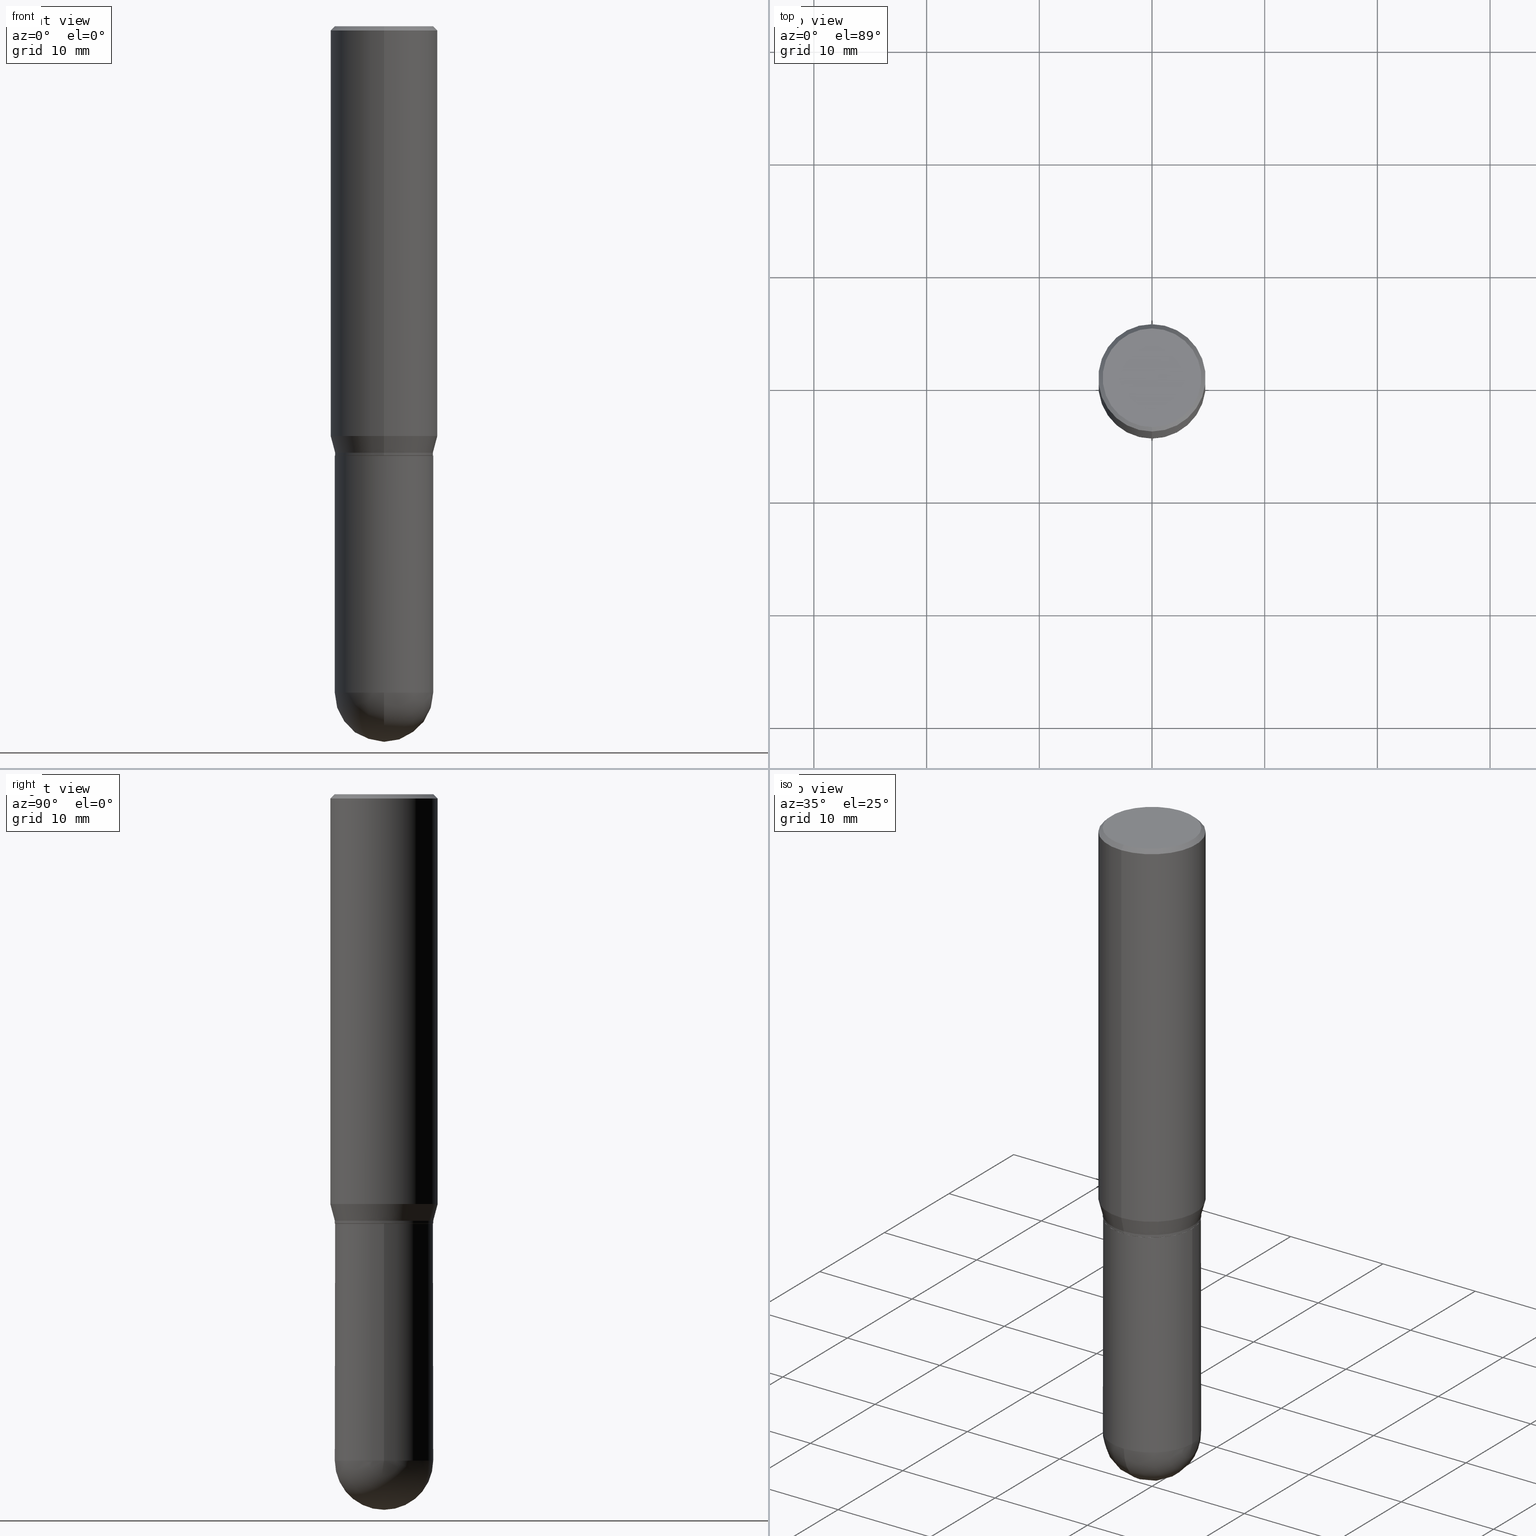
[diagram: canonical four-view strip — front | top / right | iso, engineering-drawing reading convention]
A machine part, canonical four-view strip (front | top / right | iso — engineering-drawing reading convention). The complete STEP part file that produces these views, byte-faithful:
ISO-10303-21;
HEADER;
FILE_DESCRIPTION (( 'STEP AP203' ),
    '1' );
FILE_NAME ('30344.STEP',
    '2024-03-08T15:22:31',
    ( '' ),
    ( '' ),
    'SwSTEP 2.0',
    'SolidWorks 2023',
    '' );
FILE_SCHEMA (( 'CONFIG_CONTROL_DESIGN' ));
ENDSEC;

DATA;
#1 = ORIENTED_EDGE ( 'NONE', *, *, #360, .F. ) ;
#2 = CARTESIAN_POINT ( 'NONE',  ( 0.000000000000000000, 0.000000000000000000, 0.000000000000000000 ) ) ;
#3 = VERTEX_POINT ( 'NONE', #417 ) ;
#4 = AXIS2_PLACEMENT_3D ( 'NONE', #105, #339, #143 ) ;
#5 = AXIS2_PLACEMENT_3D ( 'NONE', #58, #138, #167 ) ;
#6 = ORIENTED_EDGE ( 'NONE', *, *, #286, .F. ) ;
#7 = DIRECTION ( 'NONE',  ( 1.000000000000000000, 0.000000000000000000, 0.000000000000000000 ) ) ;
#8 = EDGE_LOOP ( 'NONE', ( #83, #259 ) ) ;
#9 = APPLICATION_PROTOCOL_DEFINITION ( 'international standard', 'config_control_design', 1994, #418 ) ;
#10 = ADVANCED_FACE ( 'NONE', ( #18 ), #490, .T. ) ;
#11 = ORIENTED_EDGE ( 'NONE', *, *, #49, .F. ) ;
#12 = CC_DESIGN_PERSON_AND_ORGANIZATION_ASSIGNMENT ( #237, #84, ( #427 ) ) ;
#13 = CARTESIAN_POINT ( 'NONE',  ( -2.199369276727651250E-46, 3.141047476091932851E-32, 8.994982205776030959E-18 ) ) ;
#14 = EDGE_LOOP ( 'NONE', ( #91, #315, #327, #50 ) ) ;
#15 = CONICAL_SURFACE ( 'NONE', #254, 0.1875000000000000278, 0.7853981633974485010 ) ;
#16 = FACE_OUTER_BOUND ( 'NONE', #197, .T. ) ;
#17 = CARTESIAN_POINT ( 'NONE',  ( 1.221422962771611214E-15, 0.1718999999999998862, -6.002747407254260600E-16 ) ) ;
#18 = FACE_OUTER_BOUND ( 'NONE', #209, .T. ) ;
#19 = DIRECTION ( 'NONE',  ( -2.445468806185136597E-29, 3.491481338843145583E-15, 1.000000000000000000 ) ) ;
#20 = CIRCLE ( 'NONE', #311, 0.1875000000000000278 ) ;
#21 = LOCAL_TIME ( 10, 22, 31.00000000000000000, #404 ) ;
#22 = CARTESIAN_POINT ( 'NONE',  ( 1.221422962771647501E-15, 0.1718999999999946959, -1.490000000000000879 ) ) ;
#23 = CARTESIAN_POINT ( 'NONE',  ( 3.668203209277704895E-29, -5.237222008264718177E-15, -1.500000000000000222 ) ) ;
#24 = DIRECTION ( 'NONE',  ( -6.982962677686265922E-15, -1.000000000000000000, 2.913971193241880372E-15 ) ) ;
#25 = ORIENTED_EDGE ( 'NONE', *, *, #415, .T. ) ;
#26 =( NAMED_UNIT ( * ) PLANE_ANGLE_UNIT ( ) SI_UNIT ( $, .RADIAN. ) );
#27 = FACE_OUTER_BOUND ( 'NONE', #8, .T. ) ;
#28 = CARTESIAN_POINT ( 'NONE',  ( -1.196879802955389158E-15, -0.1714000000000052149, -1.499999999999999556 ) ) ;
#29 = LINE ( 'NONE', #144, #78 ) ;
#30 = AXIS2_PLACEMENT_3D ( 'NONE', #230, #148, #68 ) ;
#31 = DIRECTION ( 'NONE',  ( -2.445468806185136597E-29, 3.491481338843145583E-15, 1.000000000000000000 ) ) ;
#32 = AXIS2_PLACEMENT_3D ( 'NONE', #72, #349, #63 ) ;
#33 = ADVANCED_FACE ( 'NONE', ( #487 ), #101, .T. ) ;
#34 = ADVANCED_FACE ( 'NONE', ( #489 ), #178, .T. ) ;
#35 = CARTESIAN_POINT ( 'NONE',  ( 3.500855129308181168E-29, -4.999775292141012103E-15, -1.431780007401925348 ) ) ;
#36 = FACE_OUTER_BOUND ( 'NONE', #199, .T. ) ;
#37 = EDGE_LOOP ( 'NONE', ( #441, #95, #45, #429 ) ) ;
#38 = DIRECTION ( 'NONE',  ( 6.982962677686265922E-15, 1.000000000000000000, -3.178415350394722463E-15 ) ) ;
#39 = APPROVAL_ROLE ( '' ) ;
#40 = FACE_OUTER_BOUND ( 'NONE', #131, .T. ) ;
#41 = ORGANIZATION ( 'UNSPECIFIED', 'UNSPECIFIED', '' ) ;
#42 = ORIENTED_EDGE ( 'NONE', *, *, #228, .T. ) ;
#43 = ORIENTED_EDGE ( 'NONE', *, *, #156, .T. ) ;
#44 = ORIENTED_EDGE ( 'NONE', *, *, #451, .F. ) ;
#45 = ORIENTED_EDGE ( 'NONE', *, *, #69, .F. ) ;
#46 = PERSON_AND_ORGANIZATION ( #324, #41 ) ;
#47 = VERTEX_POINT ( 'NONE', #294 ) ;
#48 = AXIS2_PLACEMENT_3D ( 'NONE', #334, #216, #492 ) ;
#49 = EDGE_CURVE ( 'NONE', #164, #469, #482, .T. ) ;
#50 = ORIENTED_EDGE ( 'NONE', *, *, #118, .F. ) ;
#51 = CARTESIAN_POINT ( 'NONE',  ( 3.667660301732476418E-29, -5.237999482769865382E-15, -1.500000000000000222 ) ) ;
#52 = ORIENTED_EDGE ( 'NONE', *, *, #435, .F. ) ;
#53 = CARTESIAN_POINT ( 'NONE',  ( 3.667660301732476418E-29, -5.237999482769865382E-15, -1.500000000000000222 ) ) ;
#54 = AXIS2_PLACEMENT_3D ( 'NONE', #464, #500, #465 ) ;
#55 = CIRCLE ( 'NONE', #476, 0.1713999999999999690 ) ;
#56 = DIRECTION ( 'NONE',  ( 2.438088387897960049E-29, -3.491481338843145188E-15, -1.000000000000000000 ) ) ;
#57 = DIRECTION ( 'NONE',  ( -2.445468806185136597E-29, 3.491481338843145583E-15, 1.000000000000000000 ) ) ;
#58 = CARTESIAN_POINT ( 'NONE',  ( 3.667660301732473984E-31, -5.237999482769862300E-17, -0.01499999999999999077 ) ) ;
#59 = CARTESIAN_POINT ( 'NONE',  ( 1.219646605932247841E-15, 0.1713999999999947510, -1.500000000000000666 ) ) ;
#60 = FACE_OUTER_BOUND ( 'NONE', #155, .T. ) ;
#61 = CARTESIAN_POINT ( 'NONE',  ( 3.667660301732476418E-29, -5.237999482769865382E-15, -1.500000000000000222 ) ) ;
#62 = AXIS2_PLACEMENT_3D ( 'NONE', #120, #151, #390 ) ;
#63 = DIRECTION ( 'NONE',  ( 6.982962677686265922E-15, 1.000000000000000000, -3.178415350394722463E-15 ) ) ;
#64 = FACE_OUTER_BOUND ( 'NONE', #354, .T. ) ;
#65 = DIRECTION ( 'NONE',  ( 2.445106867821650011E-29, -3.491999655179910386E-15, -1.000000000000000000 ) ) ;
#66 = CYLINDRICAL_SURFACE ( 'NONE', #270, 0.1875000000000000278 ) ;
#67 = CARTESIAN_POINT ( 'NONE',  ( 1.200371284294326039E-15, 0.1718999999999918094, -2.328100000000000946 ) ) ;
#68 = DIRECTION ( 'NONE',  ( -6.982962677686265922E-15, -1.000000000000000000, 3.178415350394723646E-15 ) ) ;
#69 = EDGE_CURVE ( 'NONE', #128, #132, #220, .T. ) ;
#70 = AXIS2_PLACEMENT_3D ( 'NONE', #445, #180, #247 ) ;
#71 = DIRECTION ( 'NONE',  ( -2.445106867821650572E-29, 3.491999655179909992E-15, 1.000000000000000000 ) ) ;
#72 = CARTESIAN_POINT ( 'NONE',  ( 5.678595619168622984E-29, -8.149569383438070914E-15, -2.328100000000000058 ) ) ;
#73 = CARTESIAN_POINT ( 'NONE',  ( 3.667660301732473984E-31, -5.237999482769862300E-17, -0.01499999999999999077 ) ) ;
#74 = CARTESIAN_POINT ( 'NONE',  ( -1.221422962771555008E-15, -0.1719000000000081296, -2.328099999999999614 ) ) ;
#75 = ORIENTED_EDGE ( 'NONE', *, *, #271, .T. ) ;
#76 = DATE_AND_TIME ( #477, #491 ) ;
#77 = CARTESIAN_POINT ( 'NONE',  ( 3.643209233054260103E-29, -5.203079486218066937E-15, -1.490000000000000213 ) ) ;
#78 = VECTOR ( 'NONE', #301, 39.37007874015748143 ) ;
#79 = CC_DESIGN_PERSON_AND_ORGANIZATION_ASSIGNMENT ( #46, #160, ( #282 ) ) ;
#81 = ORIENTED_EDGE ( 'NONE', *, *, #366, .F. ) ;
#80 = AXIS2_PLACEMENT_3D ( 'NONE', #35, #346, #502 ) ;
#82 = PERSON_AND_ORGANIZATION_ROLE ( 'creator' ) ;
#83 = ORIENTED_EDGE ( 'NONE', *, *, #286, .T. ) ;
#84 = PERSON_AND_ORGANIZATION_ROLE ( 'creator' ) ;
#85 = ORIENTED_EDGE ( 'NONE', *, *, #399, .T. ) ;
#86 = EDGE_CURVE ( 'NONE', #432, #162, #402, .T. ) ;
#87 = DIRECTION ( 'NONE',  ( 0.000000000000000000, 0.000000000000000000, 1.000000000000000000 ) ) ;
#88 = VERTEX_POINT ( 'NONE', #371 ) ;
#89 = AXIS2_PLACEMENT_3D ( 'NONE', #183, #71, #379 ) ;
#90 = CIRCLE ( 'NONE', #376, 0.1719000000000000250 ) ;
#91 = ORIENTED_EDGE ( 'NONE', *, *, #458, .F. ) ;
#92 = EDGE_CURVE ( 'NONE', #437, #264, #392, .T. ) ;
#93 = DIRECTION ( 'NONE',  ( -2.445106867821650572E-29, 3.491999655179909992E-15, 1.000000000000000000 ) ) ;
#94 = APPLICATION_CONTEXT ( 'configuration controlled 3d designs of mechanical parts and assemblies' ) ;
#95 = ORIENTED_EDGE ( 'NONE', *, *, #184, .T. ) ;
#96 = EDGE_CURVE ( 'NONE', #47, #164, #168, .T. ) ;
#97 = DIRECTION ( 'NONE',  ( -6.982962677686265922E-15, -1.000000000000000000, 3.178415350394723252E-15 ) ) ;
#98 = ORIENTED_EDGE ( 'NONE', *, *, #509, .F. ) ;
#99 = CYLINDRICAL_SURFACE ( 'NONE', #70, 0.1719000000000000250 ) ;
#100 = DIRECTION ( 'NONE',  ( 1.000000000000000000, -6.982962677686265922E-15, 4.883557194083112340E-29 ) ) ;
#101 = CYLINDRICAL_SURFACE ( 'NONE', #48, 0.1875000000000000278 ) ;
#102 = AXIS2_PLACEMENT_3D ( 'NONE', #298, #412, #249 ) ;
#103 = LOCAL_TIME ( 10, 22, 31.00000000000000000, #279 ) ;
#104 = CARTESIAN_POINT ( 'NONE',  ( 3.666437748298565435E-29, -5.236253482942275262E-15, -1.499500000000000277 ) ) ;
#105 = CARTESIAN_POINT ( 'NONE',  ( 3.643209233054260103E-29, -5.203079486218066937E-15, -1.490000000000000213 ) ) ;
#106 = ORIENTED_EDGE ( 'NONE', *, *, #271, .F. ) ;
#107 = ADVANCED_FACE ( 'NONE', ( #16 ), #219, .F. ) ;
#108 = DIRECTION ( 'NONE',  ( -2.445106867821650572E-29, 3.491999655179909992E-15, 1.000000000000000000 ) ) ;
#109 = CIRCLE ( 'NONE', #203, 0.1718999999999999140 ) ;
#110 = ORIENTED_EDGE ( 'NONE', *, *, #96, .T. ) ;
#111 = EDGE_CURVE ( 'NONE', #152, #493, #330, .T. ) ;
#112 = CARTESIAN_POINT ( 'NONE',  ( 5.678595619168622984E-29, -8.149569383438070914E-15, -2.328100000000000058 ) ) ;
#113 = CARTESIAN_POINT ( 'NONE',  ( -1.234889639598875176E-15, -0.1725000000000000144, 6.113649227243105668E-16 ) ) ;
#114 = DIMENSIONAL_EXPONENTS ( 1.000000000000000000, 0.000000000000000000, 0.000000000000000000, 0.000000000000000000, 0.000000000000000000, 0.000000000000000000, 0.000000000000000000 ) ;
#115 = APPROVAL_PERSON_ORGANIZATION ( #507, #226, #153 ) ;
#116 = ADVANCED_BREP_SHAPE_REPRESENTATION ( '30344', ( #455, #470, #403 ), #341 ) ;
#117 = PERSON_AND_ORGANIZATION ( #324, #41 ) ;
#118 = EDGE_CURVE ( 'NONE', #3, #132, #375, .T. ) ;
#119 = PERSON_AND_ORGANIZATION ( #324, #41 ) ;
#120 = CARTESIAN_POINT ( 'NONE',  ( 3.667660301732476418E-29, -5.237999482769865382E-15, -1.500000000000000222 ) ) ;
#121 = ORIENTED_EDGE ( 'NONE', *, *, #184, .F. ) ;
#122 = COORDINATED_UNIVERSAL_TIME_OFFSET ( 5, 0, .BEHIND. ) ;
#123 = CIRCLE ( 'NONE', #506, 0.1718999999999998862 ) ;
#125 = EDGE_LOOP ( 'NONE', ( #405, #42 ) ) ;
#124 = CC_DESIGN_APPROVAL ( #463, ( #427 ) ) ;
#126 = DATE_AND_TIME ( #240, #384 ) ;
#127 = ADVANCED_FACE ( 'NONE', ( #64 ), #234, .T. ) ;
#128 = VERTEX_POINT ( 'NONE', #211 ) ;
#129 = EDGE_CURVE ( 'NONE', #88, #444, #123, .T. ) ;
#130 = DATE_TIME_ROLE ( 'creation_date' ) ;
#131 = EDGE_LOOP ( 'NONE', ( #285, #238, #231, #326 ) ) ;
#132 = VERTEX_POINT ( 'NONE', #257 ) ;
#133 = CIRCLE ( 'NONE', #350, 0.1725000000000000144 ) ;
#134 = VECTOR ( 'NONE', #416, 39.37007874015748143 ) ;
#135 = CARTESIAN_POINT ( 'NONE',  ( 3.666437748298565435E-29, -5.236253482942275262E-15, -1.499500000000000277 ) ) ;
#136 = ORIENTED_EDGE ( 'NONE', *, *, #358, .F. ) ;
#137 = DIRECTION ( 'NONE',  ( -2.445468806185136597E-29, 3.491481338843145583E-15, 1.000000000000000000 ) ) ;
#138 = DIRECTION ( 'NONE',  ( -2.445106867821650572E-29, 3.491999655179909992E-15, 1.000000000000000000 ) ) ;
#140 = ORIENTED_EDGE ( 'NONE', *, *, #309, .F. ) ;
#139 = AXIS2_PLACEMENT_3D ( 'NONE', #191, #31, #422 ) ;
#141 = DIRECTION ( 'NONE',  ( -7.105427357601001070E-15, -1.000000000000000000, 0.000000000000000000 ) ) ;
#142 = DIRECTION ( 'NONE',  ( 1.000000000000000000, -6.982962677686265922E-15, 4.876176775795935793E-29 ) ) ;
#143 = DIRECTION ( 'NONE',  ( -6.982962677686265922E-15, -1.000000000000000000, 3.178415350394723646E-15 ) ) ;
#144 = CARTESIAN_POINT ( 'NONE',  ( -1.286343374582161576E-15, -0.1875000000000000833, -0.01499999999999933678 ) ) ;
#145 = AXIS2_PLACEMENT_3D ( 'NONE', #61, #108, #173 ) ;
#146 = LINE ( 'NONE', #385, #243 ) ;
#147 = FACE_OUTER_BOUND ( 'NONE', #372, .T. ) ;
#148 = DIRECTION ( 'NONE',  ( -2.445106867821650572E-29, 3.491999655179909992E-15, 1.000000000000000000 ) ) ;
#149 = CARTESIAN_POINT ( 'NONE',  ( 1.332267629550222558E-15, 0.1874999999999950318, -1.431780007401926014 ) ) ;
#150 = CALENDAR_DATE ( 2024, 8, 3 ) ;
#151 = DIRECTION ( 'NONE',  ( -2.445106867821650572E-29, 3.491999655179909992E-15, 1.000000000000000000 ) ) ;
#152 = VERTEX_POINT ( 'NONE', #59 ) ;
#153 = APPROVAL_ROLE ( '' ) ;
#154 = ORIENTED_EDGE ( 'NONE', *, *, #96, .F. ) ;
#155 = EDGE_LOOP ( 'NONE', ( #398, #481, #510, #448, #439 ) ) ;
#156 = EDGE_CURVE ( 'NONE', #132, #128, #20, .T. ) ;
#157 = DATE_TIME_ROLE ( 'classification_date' ) ;
#158 = AXIS2_PLACEMENT_3D ( 'NONE', #337, #213, #24 ) ;
#159 = CC_DESIGN_APPROVAL ( #226, ( #410 ) ) ;
#160 = PERSON_AND_ORGANIZATION_ROLE ( 'design_owner' ) ;
#161 = ORIENTED_EDGE ( 'NONE', *, *, #92, .F. ) ;
#162 = VERTEX_POINT ( 'NONE', #149 ) ;
#163 = DATE_AND_TIME ( #150, #21 ) ;
#164 = VERTEX_POINT ( 'NONE', #74 ) ;
#165 = PLANE ( 'NONE',  #221 ) ;
#166 = DIRECTION ( 'NONE',  ( -6.982962677686265922E-15, -1.000000000000000000, 3.491999655179909597E-15 ) ) ;
#167 = DIRECTION ( 'NONE',  ( -6.982962677686265922E-15, -1.000000000000000000, 3.494488891895536035E-15 ) ) ;
#168 = CIRCLE ( 'NONE', #356, 0.1718999999999999417 ) ;
#169 = CIRCLE ( 'NONE', #187, 0.1718999999999999695 ) ;
#170 = ADVANCED_FACE ( 'NONE', ( #36 ), #268, .T. ) ;
#171 = CARTESIAN_POINT ( 'NONE',  ( 1.221422962771647501E-15, 0.1718999999999946682, -1.499500000000000721 ) ) ;
#172 = CARTESIAN_POINT ( 'NONE',  ( 3.667660301732473984E-31, -5.237999482769862300E-17, -0.01499999999999999077 ) ) ;
#173 = DIRECTION ( 'NONE',  ( -6.982962677686266711E-15, -1.000000000000000000, 3.187687273820611169E-15 ) ) ;
#174 = ADVANCED_FACE ( 'NONE', ( #147 ), #15, .T. ) ;
#175 = CARTESIAN_POINT ( 'NONE',  ( -1.196879802955389158E-15, -0.1714000000000052149, -1.499999999999999556 ) ) ;
#176 = DIRECTION ( 'NONE',  ( -2.445106867821650572E-29, 3.491999655179909992E-15, 1.000000000000000000 ) ) ;
#177 = DIRECTION ( 'NONE',  ( -2.445106867821650011E-29, 3.491999655179910386E-15, 1.000000000000000000 ) ) ;
#178 = CONICAL_SURFACE ( 'NONE', #102, 0.1713999999999999690, 0.7853981633974824739 ) ;
#179 = AXIS2_PLACEMENT_3D ( 'NONE', #387, #65, #310 ) ;
#180 = DIRECTION ( 'NONE',  ( -2.445468806185136597E-29, 3.491481338843145583E-15, 1.000000000000000000 ) ) ;
#181 = DIRECTION ( 'NONE',  ( 4.937700262164548831E-15, 0.7071067811865452413, -0.7071067811865497932 ) ) ;
#182 = APPROVAL ( #473, 'UNSPECIFIED' ) ;
#183 = CARTESIAN_POINT ( 'NONE',  ( 0.000000000000000000, 0.000000000000000000, 0.000000000000000000 ) ) ;
#184 = EDGE_CURVE ( 'NONE', #162, #132, #386, .T. ) ;
#185 = DIRECTION ( 'NONE',  ( -1.807323732225328167E-15, -0.2588190451025179084, 0.9659258262890690894 ) ) ;
#186 = CARTESIAN_POINT ( 'NONE',  ( 0.000000000000000000, 0.000000000000000000, 0.000000000000000000 ) ) ;
#187 = AXIS2_PLACEMENT_3D ( 'NONE', #23, #248, #338 ) ;
#188 = FACE_OUTER_BOUND ( 'NONE', #37, .T. ) ;
#189 = EDGE_CURVE ( 'NONE', #444, #88, #201, .T. ) ;
#190 = LINE ( 'NONE', #499, #468 ) ;
#191 = CARTESIAN_POINT ( 'NONE',  ( 3.668203209277704895E-29, -5.237222008264718177E-15, -1.500000000000000222 ) ) ;
#192 = PRODUCT_RELATED_PRODUCT_CATEGORY ( 'detail', '', ( #282 ) ) ;
#193 = AXIS2_PLACEMENT_3D ( 'NONE', #325, #395, #166 ) ;
#194 = APPROVAL_DATE_TIME ( #126, #226 ) ;
#195 = AXIS2_PLACEMENT_3D ( 'NONE', #135, #93, #246 ) ;
#196 = PERSON_AND_ORGANIZATION_ROLE ( 'design_supplier' ) ;
#197 = EDGE_LOOP ( 'NONE', ( #106, #81 ) ) ;
#198 = SHAPE_DEFINITION_REPRESENTATION ( #262, #116 ) ;
#199 = EDGE_LOOP ( 'NONE', ( #236, #436, #85, #355 ) ) ;
#200 = ORIENTED_EDGE ( 'NONE', *, *, #309, .T. ) ;
#201 = CIRCLE ( 'NONE', #30, 0.1718999999999998862 ) ;
#202 = DESIGN_CONTEXT ( 'detailed design', #94, 'design' ) ;
#203 = AXIS2_PLACEMENT_3D ( 'NONE', #104, #176, #97 ) ;
#204 = EDGE_LOOP ( 'NONE', ( #154, #200, #357, #11 ) ) ;
#205 = PERSON_AND_ORGANIZATION ( #324, #41 ) ;
#206 = ORIENTED_EDGE ( 'NONE', *, *, #189, .T. ) ;
#207 =( LENGTH_UNIT ( ) NAMED_UNIT ( * ) SI_UNIT ( $, .METRE. ) );
#208 = DIRECTION ( 'NONE',  ( -2.445106867821650572E-29, 3.491999655179909992E-15, 1.000000000000000000 ) ) ;
#209 = EDGE_LOOP ( 'NONE', ( #75, #353, #136, #378 ) ) ;
#210 = CARTESIAN_POINT ( 'NONE',  ( 5.678595619168622984E-29, -8.149569383438070914E-15, -2.328100000000000058 ) ) ;
#211 = CARTESIAN_POINT ( 'NONE',  ( -1.309305502066174614E-15, -0.1875000000000000833, -0.01499999999999933678 ) ) ;
#212 = DIRECTION ( 'NONE',  ( 1.000000000000000000, -6.982962677686271444E-15, 0.000000000000000000 ) ) ;
#213 = DIRECTION ( 'NONE',  ( -2.445106867821650572E-29, 3.491999655179909992E-15, 1.000000000000000000 ) ) ;
#214 = EDGE_CURVE ( 'NONE', #241, #128, #29, .T. ) ;
#215 = ADVANCED_FACE ( 'NONE', ( #382 ), #293, .T. ) ;
#216 = DIRECTION ( 'NONE',  ( -2.445106867821650572E-29, 3.491999655179909992E-15, 1.000000000000000000 ) ) ;
#217 = DIRECTION ( 'NONE',  ( -2.445106867821650572E-29, 3.491999655179910386E-15, 1.000000000000000000 ) ) ;
#218 = DIRECTION ( 'NONE',  ( -2.445468806185136597E-29, 3.491481338843145583E-15, 1.000000000000000000 ) ) ;
#219 = PLANE ( 'NONE',  #467 ) ;
#220 = CIRCLE ( 'NONE', #5, 0.1875000000000000278 ) ;
#221 = AXIS2_PLACEMENT_3D ( 'NONE', #250, #56, #456 ) ;
#222 = ORIENTED_EDGE ( 'NONE', *, *, #156, .F. ) ;
#223 = CARTESIAN_POINT ( 'NONE',  ( 0.1718999999999999695, -6.437593292558987418E-15, -1.500000000000000222 ) ) ;
#224 = UNCERTAINTY_MEASURE_WITH_UNIT (LENGTH_MEASURE( 1.000000000000000082E-05 ), #229, 'distance_accuracy_value', 'NONE');
#225 = DIRECTION ( 'NONE',  ( -2.445106867821650572E-29, 3.491999655179909992E-15, 1.000000000000000000 ) ) ;
#226 = APPROVAL ( #281, 'UNSPECIFIED' ) ;
#227 = CLOSED_SHELL ( 'NONE', ( #276, #10, #215, #256, #269, #127, #33, #174, #380, #107, #34, #170 ) ) ;
#228 = EDGE_CURVE ( 'NONE', #267, #400, #383, .T. ) ;
#229 =( CONVERSION_BASED_UNIT ( 'INCH', #348 ) LENGTH_UNIT ( ) NAMED_UNIT ( #114 ) );
#230 = CARTESIAN_POINT ( 'NONE',  ( 3.643209233054260103E-29, -5.203079486218066937E-15, -1.490000000000000213 ) ) ;
#231 = ORIENTED_EDGE ( 'NONE', *, *, #189, .F. ) ;
#232 = DATE_AND_TIME ( #351, #103 ) ;
#233 = EDGE_LOOP ( 'NONE', ( #283, #407, #25, #471 ) ) ;
#234 = CONICAL_SURFACE ( 'NONE', #4, 0.1718999999999998862, 0.2617993877991499629 ) ;
#235 = VECTOR ( 'NONE', #497, 39.37007874015748143 ) ;
#236 = ORIENTED_EDGE ( 'NONE', *, *, #503, .F. ) ;
#237 = PERSON_AND_ORGANIZATION ( #324, #41 ) ;
#238 = ORIENTED_EDGE ( 'NONE', *, *, #503, .T. ) ;
#239 = CC_DESIGN_DATE_AND_TIME_ASSIGNMENT ( #163, #130, ( #391 ) ) ;
#240 = CALENDAR_DATE ( 2024, 8, 3 ) ;
#241 = VERTEX_POINT ( 'NONE', #113 ) ;
#242 = AXIS2_PLACEMENT_3D ( 'NONE', #420, #137, #409 ) ;
#243 = VECTOR ( 'NONE', #185, 39.37007874015748143 ) ;
#244 = ORIENTED_EDGE ( 'NONE', *, *, #129, .T. ) ;
#245 = DIRECTION ( 'NONE',  ( 1.839019923739597949E-15, 0.2588190451025246253, 0.9659258262890670910 ) ) ;
#246 = DIRECTION ( 'NONE',  ( -6.982962677686265922E-15, -1.000000000000000000, 3.178415350394723252E-15 ) ) ;
#247 = DIRECTION ( 'NONE',  ( 1.000000000000000000, -6.982962677686265922E-15, 4.876176775795935793E-29 ) ) ;
#248 = DIRECTION ( 'NONE',  ( -2.445468806185136597E-29, 3.491481338843145583E-15, 1.000000000000000000 ) ) ;
#249 = DIRECTION ( 'NONE',  ( -6.982962677686266711E-15, -1.000000000000000000, 3.187687273820611169E-15 ) ) ;
#250 = CARTESIAN_POINT ( 'NONE',  ( 1.200371284294305726E-15, 0.1718999999999947514, -1.500000000000000666 ) ) ;
#251 = CYLINDRICAL_SURFACE ( 'NONE', #393, 0.1719000000000000250 ) ;
#252 = CARTESIAN_POINT ( 'NONE',  ( 1.217870249092847983E-15, 0.1713999999999947510, -1.500000000000000666 ) ) ;
#253 = EDGE_CURVE ( 'NONE', #264, #164, #302, .T. ) ;
#254 = AXIS2_PLACEMENT_3D ( 'NONE', #73, #275, #347 ) ;
#255 = VECTOR ( 'NONE', #289, 39.37007874015748143 ) ;
#256 = ADVANCED_FACE ( 'NONE', ( #188 ), #66, .T. ) ;
#257 = CARTESIAN_POINT ( 'NONE',  ( 1.332267629550222953E-15, 0.1874999999999999445, -0.01500000000000064650 ) ) ;
#258 = DIRECTION ( 'NONE',  ( -2.445106867821650572E-29, 3.491999655179909992E-15, 1.000000000000000000 ) ) ;
#259 = ORIENTED_EDGE ( 'NONE', *, *, #458, .T. ) ;
#260 = DIRECTION ( 'NONE',  ( -4.937700262164715281E-15, -0.7071067811865691111, 0.7071067811865257013 ) ) ;
#261 = CARTESIAN_POINT ( 'NONE',  ( 5.693295927679617284E-29, -8.128517704960729139E-15, -2.328100000000000058 ) ) ;
#262 = PRODUCT_DEFINITION_SHAPE ( 'NONE', 'NONE',  #391 ) ;
#264 = VERTEX_POINT ( 'NONE', #308 ) ;
#263 = VECTOR ( 'NONE', #181, 39.37007874015748143 ) ;
#265 = AXIS2_PLACEMENT_3D ( 'NONE', #273, #377, #362 ) ;
#266 = DIRECTION ( 'NONE',  ( -2.445106867821650572E-29, 3.491999655179910386E-15, 1.000000000000000000 ) ) ;
#267 = VERTEX_POINT ( 'NONE', #431 ) ;
#268 = CYLINDRICAL_SURFACE ( 'NONE', #89, 0.1718999999999998862 ) ;
#269 = ADVANCED_FACE ( 'NONE', ( #352 ), #426, .T. ) ;
#270 = AXIS2_PLACEMENT_3D ( 'NONE', #186, #225, #345 ) ;
#271 = EDGE_CURVE ( 'NONE', #474, #152, #442, .T. ) ;
#272 = CC_DESIGN_APPROVAL ( #182, ( #391 ) ) ;
#273 = CARTESIAN_POINT ( 'NONE',  ( -2.199369276727651250E-46, 3.141047476091932851E-32, 8.994982205776030959E-18 ) ) ;
#274 = PERSON_AND_ORGANIZATION_ROLE ( 'classification_officer' ) ;
#275 = DIRECTION ( 'NONE',  ( 2.445106867821650572E-29, -3.491999655179909992E-15, -1.000000000000000000 ) ) ;
#276 = ADVANCED_FACE ( 'NONE', ( #40 ), #314, .T. ) ;
#277 = DIRECTION ( 'NONE',  ( -2.445106867821650572E-29, 3.491999655179909992E-15, 1.000000000000000000 ) ) ;
#278 = ORIENTED_EDGE ( 'NONE', *, *, #306, .T. ) ;
#279 = COORDINATED_UNIVERSAL_TIME_OFFSET ( 5, 0, .BEHIND. ) ;
#280 = VERTEX_POINT ( 'NONE', #485 ) ;
#281 = APPROVAL_STATUS ( 'not_yet_approved' ) ;
#282 = PRODUCT ( '30344', '30344', '', ( #511 ) ) ;
#283 = ORIENTED_EDGE ( 'NONE', *, *, #111, .F. ) ;
#284 = APPROVAL_ROLE ( '' ) ;
#285 = ORIENTED_EDGE ( 'NONE', *, *, #358, .T. ) ;
#286 = EDGE_CURVE ( 'NONE', #3, #241, #133, .T. ) ;
#287 = AXIS2_PLACEMENT_3D ( 'NONE', #77, #277, #508 ) ;
#288 = EDGE_LOOP ( 'NONE', ( #140, #110, #320, #161 ) ) ;
#289 = DIRECTION ( 'NONE',  ( -2.445468806185136877E-29, 3.491481338843145188E-15, 1.000000000000000000 ) ) ;
#290 = DIRECTION ( 'NONE',  ( 5.024295867788231995E-15, 0.7071067811865739960, 0.7071067811865208164 ) ) ;
#291 = EDGE_CURVE ( 'NONE', #493, #280, #109, .T. ) ;
#292 = DIRECTION ( 'NONE',  ( 1.000000000000000000, -6.982962677686271444E-15, 0.000000000000000000 ) ) ;
#293 = CONICAL_SURFACE ( 'NONE', #419, 0.1875000000000000278, 0.7853981633974485010 ) ;
#294 = CARTESIAN_POINT ( 'NONE',  ( 6.106321861207344902E-29, -8.739229186346536619E-15, -2.500000000000000000 ) ) ;
#295 = CIRCLE ( 'NONE', #265, 0.1725000000000000144 ) ;
#296 = CIRCLE ( 'NONE', #449, 0.1718999999999999417 ) ;
#297 = LINE ( 'NONE', #17, #367 ) ;
#298 = CARTESIAN_POINT ( 'NONE',  ( 3.667660301732476418E-29, -5.237999482769865382E-15, -1.500000000000000222 ) ) ;
#299 = LINE ( 'NONE', #423, #235 ) ;
#300 = DIRECTION ( 'NONE',  ( -2.445106867821650572E-29, 3.491999655179909992E-15, 1.000000000000000000 ) ) ;
#301 = DIRECTION ( 'NONE',  ( -4.851104656540965064E-15, -0.7071067811865501263, -0.7071067811865449082 ) ) ;
#302 = CIRCLE ( 'NONE', #54, 0.1719000000000000250 ) ;
#303 = VECTOR ( 'NONE', #260, 39.37007874015748854 ) ;
#304 = DIRECTION ( 'NONE',  ( -2.445106867821650572E-29, 3.491999655179910386E-15, 1.000000000000000000 ) ) ;
#305 = DIRECTION ( 'NONE',  ( -6.982962677686265922E-15, -1.000000000000000000, 3.494488891895536035E-15 ) ) ;
#306 = EDGE_CURVE ( 'NONE', #264, #267, #447, .T. ) ;
#307 = FACE_OUTER_BOUND ( 'NONE', #288, .T. ) ;
#308 = CARTESIAN_POINT ( 'NONE',  ( -0.1719000000000000250, -5.461446893841112247E-15, -2.328100000000000058 ) ) ;
#309 = EDGE_CURVE ( 'NONE', #47, #437, #296, .T. ) ;
#310 = DIRECTION ( 'NONE',  ( 6.982962677686265922E-15, 1.000000000000000000, -3.491999655179910386E-15 ) ) ;
#311 = AXIS2_PLACEMENT_3D ( 'NONE', #172, #300, #305 ) ;
#312 = CC_DESIGN_SECURITY_CLASSIFICATION ( #410, ( #427 ) ) ;
#313 = COORDINATED_UNIVERSAL_TIME_OFFSET ( 5, 0, .BEHIND. ) ;
#314 = CYLINDRICAL_SURFACE ( 'NONE', #193, 0.1718999999999998862 ) ;
#315 = ORIENTED_EDGE ( 'NONE', *, *, #214, .T. ) ;
#316 = COORDINATED_UNIVERSAL_TIME_OFFSET ( 5, 0, .BEHIND. ) ;
#317 = ORIENTED_EDGE ( 'NONE', *, *, #414, .T. ) ;
#318 = CALENDAR_DATE ( 2024, 8, 3 ) ;
#319 = LOCAL_TIME ( 10, 22, 31.00000000000000000, #122 ) ;
#320 = ORIENTED_EDGE ( 'NONE', *, *, #253, .F. ) ;
#321 = ORIENTED_EDGE ( 'NONE', *, *, #451, .T. ) ;
#322 = APPROVAL_DATE_TIME ( #359, #182 ) ;
#323 = ADVANCED_FACE ( 'NONE', ( #60 ), #251, .T. ) ;
#324 = PERSON ( 'UNSPECIFIED', 'UNSPECIFIED', 'UNSPECIFIED', ('UNSPECIFIED'), ('UNSPECIFIED'), ('UNSPECIFIED') ) ;
#325 = CARTESIAN_POINT ( 'NONE',  ( 0.000000000000000000, 0.000000000000000000, 0.000000000000000000 ) ) ;
#326 = ORIENTED_EDGE ( 'NONE', *, *, #399, .F. ) ;
#327 = ORIENTED_EDGE ( 'NONE', *, *, #69, .T. ) ;
#328 = APPROVAL_PERSON_ORGANIZATION ( #438, #463, #284 ) ;
#329 = DIRECTION ( 'NONE',  ( 6.982962677686266711E-15, 1.000000000000000000, 0.000000000000000000 ) ) ;
#330 = LINE ( 'NONE', #252, #459 ) ;
#331 = DIRECTION ( 'NONE',  ( -6.982962677686265922E-15, -1.000000000000000000, 3.178415350394723646E-15 ) ) ;
#332 = CC_DESIGN_PERSON_AND_ORGANIZATION_ASSIGNMENT ( #117, #196, ( #427 ) ) ;
#333 = LINE ( 'NONE', #22, #483 ) ;
#334 = CARTESIAN_POINT ( 'NONE',  ( 0.000000000000000000, 0.000000000000000000, 0.000000000000000000 ) ) ;
#335 = FACE_OUTER_BOUND ( 'NONE', #365, .T. ) ;
#336 = CARTESIAN_POINT ( 'NONE',  ( -0.1719000000000000250, 1.221422962771612397E-15, -8.455649420148184581E-30 ) ) ;
#337 = CARTESIAN_POINT ( 'NONE',  ( 3.500855129308181168E-29, -4.999775292141012103E-15, -1.431780007401925348 ) ) ;
#338 = DIRECTION ( 'NONE',  ( 1.000000000000000000, -6.982962677686268288E-15, 0.000000000000000000 ) ) ;
#339 = DIRECTION ( 'NONE',  ( -2.445106867821650572E-29, 3.491999655179909992E-15, 1.000000000000000000 ) ) ;
#340 = CARTESIAN_POINT ( 'NONE',  ( 1.332267629550187651E-15, 0.1875000000000000278, -6.547499353462331727E-16 ) ) ;
#341 =( GEOMETRIC_REPRESENTATION_CONTEXT ( 3 ) GLOBAL_UNCERTAINTY_ASSIGNED_CONTEXT ( ( #224 ) ) GLOBAL_UNIT_ASSIGNED_CONTEXT ( ( #229, #26, #504 ) ) REPRESENTATION_CONTEXT ( 'NONE', 'WORKASPACE' ) );
#342 = EDGE_CURVE ( 'NONE', #400, #267, #169, .T. ) ;
#343 = EDGE_CURVE ( 'NONE', #469, #437, #90, .T. ) ;
#344 = SPHERICAL_SURFACE ( 'NONE', #462, 0.1718999999999999417 ) ;
#345 = DIRECTION ( 'NONE',  ( -6.982962677686265922E-15, -1.000000000000000000, 3.491999655179909597E-15 ) ) ;
#346 = DIRECTION ( 'NONE',  ( -2.445106867821650572E-29, 3.491999655179909992E-15, 1.000000000000000000 ) ) ;
#347 = DIRECTION ( 'NONE',  ( 6.982962677686265922E-15, 1.000000000000000000, -3.494488891895536035E-15 ) ) ;
#348 = LENGTH_MEASURE_WITH_UNIT ( LENGTH_MEASURE( 0.02539999999999999897 ), #207 );
#349 = DIRECTION ( 'NONE',  ( -1.000000000000000000, 6.982962677686265922E-15, -4.883557194083112340E-29 ) ) ;
#350 = AXIS2_PLACEMENT_3D ( 'NONE', #13, #258, #368 ) ;
#351 = CALENDAR_DATE ( 2024, 8, 3 ) ;
#352 = FACE_OUTER_BOUND ( 'NONE', #396, .T. ) ;
#353 = ORIENTED_EDGE ( 'NONE', *, *, #111, .T. ) ;
#354 = EDGE_LOOP ( 'NONE', ( #98, #244, #472, #44 ) ) ;
#355 = ORIENTED_EDGE ( 'NONE', *, *, #129, .F. ) ;
#356 = AXIS2_PLACEMENT_3D ( 'NONE', #450, #457, #141 ) ;
#357 = ORIENTED_EDGE ( 'NONE', *, *, #343, .F. ) ;
#358 = EDGE_CURVE ( 'NONE', #280, #493, #421, .T. ) ;
#359 = DATE_AND_TIME ( #318, #319 ) ;
#360 = EDGE_CURVE ( 'NONE', #469, #400, #406, .T. ) ;
#361 = ORIENTED_EDGE ( 'NONE', *, *, #509, .T. ) ;
#362 = DIRECTION ( 'NONE',  ( -6.982962677686266711E-15, -1.000000000000000000, 3.491999655179909992E-15 ) ) ;
#363 = EDGE_LOOP ( 'NONE', ( #121, #321, #317, #222 ) ) ;
#364 = FACE_OUTER_BOUND ( 'NONE', #125, .T. ) ;
#365 = EDGE_LOOP ( 'NONE', ( #512, #278, #389, #1, #446 ) ) ;
#366 = EDGE_CURVE ( 'NONE', #152, #474, #55, .T. ) ;
#367 = VECTOR ( 'NONE', #217, 39.37007874015748143 ) ;
#368 = DIRECTION ( 'NONE',  ( -6.982962677686266711E-15, -1.000000000000000000, 3.491999655179909992E-15 ) ) ;
#369 = CARTESIAN_POINT ( 'NONE',  ( 3.643209233054260103E-29, -5.203079486218066937E-15, -1.490000000000000213 ) ) ;
#370 = CARTESIAN_POINT ( 'NONE',  ( 0.1719000000000000250, -1.200371284294269241E-15, 8.382147877593214480E-30 ) ) ;
#371 = CARTESIAN_POINT ( 'NONE',  ( 1.276845296160934931E-15, 0.1718999999999946959, -1.490000000000000879 ) ) ;
#372 = EDGE_LOOP ( 'NONE', ( #430, #6, #401, #43 ) ) ;
#373 = ADVANCED_FACE ( 'NONE', ( #307 ), #344, .T. ) ;
#374 = VECTOR ( 'NONE', #266, 39.37007874015748143 ) ;
#375 = LINE ( 'NONE', #486, #263 ) ;
#376 = AXIS2_PLACEMENT_3D ( 'NONE', #443, #57, #212 ) ;
#377 = DIRECTION ( 'NONE',  ( -2.445106867821650572E-29, 3.491999655179909992E-15, 1.000000000000000000 ) ) ;
#378 = ORIENTED_EDGE ( 'NONE', *, *, #415, .F. ) ;
#379 = DIRECTION ( 'NONE',  ( -6.982962677686265922E-15, -1.000000000000000000, 3.491999655179909597E-15 ) ) ;
#380 = ADVANCED_FACE ( 'NONE', ( #27 ), #494, .F. ) ;
#381 = CARTESIAN_POINT ( 'NONE',  ( -1.200371284294231968E-15, -0.1719000000000050765, -1.489999999999999769 ) ) ;
#382 = FACE_OUTER_BOUND ( 'NONE', #14, .T. ) ;
#383 = CIRCLE ( 'NONE', #139, 0.1718999999999999695 ) ;
#384 = LOCAL_TIME ( 10, 22, 31.00000000000000000, #313 ) ;
#385 = CARTESIAN_POINT ( 'NONE',  ( -1.200371284294231968E-15, -0.1719000000000050765, -1.489999999999999769 ) ) ;
#386 = LINE ( 'NONE', #340, #374 ) ;
#387 = CARTESIAN_POINT ( 'NONE',  ( 1.204561061900881047E-15, 0.1725000000000000144, -5.978724494156464949E-16 ) ) ;
#388 = CARTESIAN_POINT ( 'NONE',  ( 3.667660301732473984E-31, -5.237999482769862300E-17, -0.01499999999999999077 ) ) ;
#389 = ORIENTED_EDGE ( 'NONE', *, *, #342, .F. ) ;
#390 = DIRECTION ( 'NONE',  ( -6.982962677686266711E-15, -1.000000000000000000, 3.187687273820611169E-15 ) ) ;
#391 = PRODUCT_DEFINITION ( 'UNKNOWN', '', #427, #202 ) ;
#392 = CIRCLE ( 'NONE', #242, 0.1719000000000000250 ) ;
#393 = AXIS2_PLACEMENT_3D ( 'NONE', #411, #218, #142 ) ;
#394 = APPROVAL_STATUS ( 'not_yet_approved' ) ;
#395 = DIRECTION ( 'NONE',  ( -2.445106867821650572E-29, 3.491999655179909992E-15, 1.000000000000000000 ) ) ;
#396 = EDGE_LOOP ( 'NONE', ( #206, #361, #479, #52 ) ) ;
#397 = SECURITY_CLASSIFICATION_LEVEL ( 'unclassified' ) ;
#398 = ORIENTED_EDGE ( 'NONE', *, *, #306, .F. ) ;
#399 = EDGE_CURVE ( 'NONE', #280, #444, #299, .T. ) ;
#400 = VERTEX_POINT ( 'NONE', #223 ) ;
#401 = ORIENTED_EDGE ( 'NONE', *, *, #118, .T. ) ;
#402 = CIRCLE ( 'NONE', #158, 0.1875000000000000278 ) ;
#403 = AXIS2_PLACEMENT_3D ( 'NONE', #2, #87, #7 ) ;
#404 = COORDINATED_UNIVERSAL_TIME_OFFSET ( 5, 0, .BEHIND. ) ;
#405 = ORIENTED_EDGE ( 'NONE', *, *, #342, .T. ) ;
#406 = LINE ( 'NONE', #370, #255 ) ;
#407 = ORIENTED_EDGE ( 'NONE', *, *, #366, .T. ) ;
#408 = DIRECTION ( 'NONE',  ( -6.982962677686266711E-15, -1.000000000000000000, 3.187687273820611169E-15 ) ) ;
#409 = DIRECTION ( 'NONE',  ( 1.000000000000000000, -6.982962677686271444E-15, 0.000000000000000000 ) ) ;
#410 = SECURITY_CLASSIFICATION ( '', '', #397 ) ;
#411 = CARTESIAN_POINT ( 'NONE',  ( 0.000000000000000000, 0.000000000000000000, 0.000000000000000000 ) ) ;
#412 = DIRECTION ( 'NONE',  ( -2.445106867821650572E-29, 3.491999655179909992E-15, 1.000000000000000000 ) ) ;
#413 = DIRECTION ( 'NONE',  ( -2.445106867821650572E-29, 3.491999655179909992E-15, 1.000000000000000000 ) ) ;
#414 = EDGE_CURVE ( 'NONE', #432, #128, #190, .T. ) ;
#415 = EDGE_CURVE ( 'NONE', #474, #280, #505, .T. ) ;
#416 = DIRECTION ( 'NONE',  ( -2.445468806185136877E-29, 3.491481338843145188E-15, 1.000000000000000000 ) ) ;
#417 = CARTESIAN_POINT ( 'NONE',  ( 1.256933281983528323E-15, 0.1725000000000000144, -5.933749583127584710E-16 ) ) ;
#418 = APPLICATION_CONTEXT ( 'configuration controlled 3d designs of mechanical parts and assemblies' ) ;
#419 = AXIS2_PLACEMENT_3D ( 'NONE', #388, #461, #424 ) ;
#420 = CARTESIAN_POINT ( 'NONE',  ( 5.693295927679617284E-29, -8.128517704960729139E-15, -2.328100000000000058 ) ) ;
#421 = CIRCLE ( 'NONE', #195, 0.1718999999999999140 ) ;
#422 = DIRECTION ( 'NONE',  ( 1.000000000000000000, -6.982962677686268288E-15, 0.000000000000000000 ) ) ;
#423 = CARTESIAN_POINT ( 'NONE',  ( -1.200371284294268255E-15, -0.1718999999999998862, 6.002747407254260600E-16 ) ) ;
#424 = DIRECTION ( 'NONE',  ( 6.982962677686265922E-15, 1.000000000000000000, -3.494488891895536035E-15 ) ) ;
#425 = CARTESIAN_POINT ( 'NONE',  ( -1.309305502066140101E-15, -0.1875000000000049960, -1.431780007401924903 ) ) ;
#426 = CONICAL_SURFACE ( 'NONE', #287, 0.1718999999999998862, 0.2617993877991499629 ) ;
#427 = PRODUCT_DEFINITION_FORMATION_WITH_SPECIFIED_SOURCE ( 'ANY', '', #282, .NOT_KNOWN. ) ;
#428 = SPHERICAL_SURFACE ( 'NONE', #32, 0.1718999999999999417 ) ;
#429 = ORIENTED_EDGE ( 'NONE', *, *, #414, .F. ) ;
#430 = ORIENTED_EDGE ( 'NONE', *, *, #214, .F. ) ;
#431 = CARTESIAN_POINT ( 'NONE',  ( -0.1718999999999999695, -5.461446893841111458E-15, -1.500000000000000222 ) ) ;
#432 = VERTEX_POINT ( 'NONE', #425 ) ;
#433 = CIRCLE ( 'NONE', #80, 0.1875000000000000278 ) ;
#434 = APPLICATION_PROTOCOL_DEFINITION ( 'international standard', 'config_control_design', 1994, #94 ) ;
#435 = EDGE_CURVE ( 'NONE', #444, #432, #146, .T. ) ;
#436 = ORIENTED_EDGE ( 'NONE', *, *, #291, .T. ) ;
#437 = VERTEX_POINT ( 'NONE', #67 ) ;
#438 = PERSON_AND_ORGANIZATION ( #324, #41 ) ;
#439 = ORIENTED_EDGE ( 'NONE', *, *, #228, .F. ) ;
#440 = APPROVAL_DATE_TIME ( #76, #463 ) ;
#441 = ORIENTED_EDGE ( 'NONE', *, *, #86, .T. ) ;
#442 = CIRCLE ( 'NONE', #62, 0.1713999999999999690 ) ;
#443 = CARTESIAN_POINT ( 'NONE',  ( 5.693295927679617284E-29, -8.128517704960729139E-15, -2.328100000000000058 ) ) ;
#444 = VERTEX_POINT ( 'NONE', #381 ) ;
#445 = CARTESIAN_POINT ( 'NONE',  ( 0.000000000000000000, 0.000000000000000000, 0.000000000000000000 ) ) ;
#446 = ORIENTED_EDGE ( 'NONE', *, *, #343, .T. ) ;
#447 = LINE ( 'NONE', #336, #134 ) ;
#448 = ORIENTED_EDGE ( 'NONE', *, *, #360, .T. ) ;
#449 = AXIS2_PLACEMENT_3D ( 'NONE', #210, #100, #329 ) ;
#450 = CARTESIAN_POINT ( 'NONE',  ( 5.678595619168622984E-29, -8.149569383438070914E-15, -2.328100000000000058 ) ) ;
#451 = EDGE_CURVE ( 'NONE', #162, #432, #433, .T. ) ;
#452 = ADVANCED_FACE ( 'NONE', ( #466 ), #428, .T. ) ;
#453 = DIRECTION ( 'NONE',  ( -6.982962677686265922E-15, -1.000000000000000000, 3.491999655179910386E-15 ) ) ;
#454 = CC_DESIGN_PERSON_AND_ORGANIZATION_ASSIGNMENT ( #119, #274, ( #410 ) ) ;
#455 = MANIFOLD_SOLID_BREP ( 'Body-Move/Copy2[1]', #496 ) ;
#456 = DIRECTION ( 'NONE',  ( -1.000000000000000000, 6.982962677686265922E-15, -4.876176775795935793E-29 ) ) ;
#457 = DIRECTION ( 'NONE',  ( -1.000000000000000000, 7.105427357601001070E-15, -4.926315508542082329E-29 ) ) ;
#458 = EDGE_CURVE ( 'NONE', #241, #3, #295, .T. ) ;
#459 = VECTOR ( 'NONE', #290, 39.37007874015748854 ) ;
#460 = DIRECTION ( 'NONE',  ( -1.000000000000000000, 6.982962677686265922E-15, -4.883557194083112340E-29 ) ) ;
#461 = DIRECTION ( 'NONE',  ( 2.445106867821650572E-29, -3.491999655179909992E-15, -1.000000000000000000 ) ) ;
#462 = AXIS2_PLACEMENT_3D ( 'NONE', #112, #460, #38 ) ;
#463 = APPROVAL ( #394, 'UNSPECIFIED' ) ;
#464 = CARTESIAN_POINT ( 'NONE',  ( 5.693295927679617284E-29, -8.128517704960729139E-15, -2.328100000000000058 ) ) ;
#465 = DIRECTION ( 'NONE',  ( 1.000000000000000000, -6.982962677686271444E-15, 0.000000000000000000 ) ) ;
#466 = FACE_OUTER_BOUND ( 'NONE', #204, .T. ) ;
#467 = AXIS2_PLACEMENT_3D ( 'NONE', #53, #177, #453 ) ;
#469 = VERTEX_POINT ( 'NONE', #484 ) ;
#468 = VECTOR ( 'NONE', #304, 39.37007874015748143 ) ;
#470 = MANIFOLD_SOLID_BREP ( 'Body-Move/Copy2[2]', #227 ) ;
#471 = ORIENTED_EDGE ( 'NONE', *, *, #291, .F. ) ;
#472 = ORIENTED_EDGE ( 'NONE', *, *, #435, .T. ) ;
#473 = APPROVAL_STATUS ( 'not_yet_approved' ) ;
#474 = VERTEX_POINT ( 'NONE', #175 ) ;
#475 = AXIS2_PLACEMENT_3D ( 'NONE', #261, #19, #292 ) ;
#476 = AXIS2_PLACEMENT_3D ( 'NONE', #51, #208, #408 ) ;
#477 = CALENDAR_DATE ( 2024, 8, 3 ) ;
#478 = CC_DESIGN_DATE_AND_TIME_ASSIGNMENT ( #232, #157, ( #410 ) ) ;
#479 = ORIENTED_EDGE ( 'NONE', *, *, #86, .F. ) ;
#480 = PERSON_AND_ORGANIZATION ( #324, #41 ) ;
#481 = ORIENTED_EDGE ( 'NONE', *, *, #253, .T. ) ;
#482 = CIRCLE ( 'NONE', #475, 0.1719000000000000250 ) ;
#483 = VECTOR ( 'NONE', #245, 39.37007874015748854 ) ;
#484 = CARTESIAN_POINT ( 'NONE',  ( 0.1719000000000000250, -7.883241140906993293E-15, -2.328100000000000058 ) ) ;
#485 = CARTESIAN_POINT ( 'NONE',  ( -1.200371284294232165E-15, -0.1719000000000051598, -1.499499999999999611 ) ) ;
#486 = CARTESIAN_POINT ( 'NONE',  ( 1.309305502066175600E-15, 0.1874999999999999445, -0.01500000000000064650 ) ) ;
#487 = FACE_OUTER_BOUND ( 'NONE', #363, .T. ) ;
#488 = ADVANCED_FACE ( 'NONE', ( #335 ), #99, .T. ) ;
#489 = FACE_OUTER_BOUND ( 'NONE', #233, .T. ) ;
#490 = CONICAL_SURFACE ( 'NONE', #145, 0.1713999999999999690, 0.7853981633974824739 ) ;
#491 = LOCAL_TIME ( 10, 22, 31.00000000000000000, #316 ) ;
#492 = DIRECTION ( 'NONE',  ( -6.982962677686265922E-15, -1.000000000000000000, 3.491999655179909597E-15 ) ) ;
#493 = VERTEX_POINT ( 'NONE', #171 ) ;
#494 = PLANE ( 'NONE',  #179 ) ;
#495 = CC_DESIGN_PERSON_AND_ORGANIZATION_ASSIGNMENT ( #480, #82, ( #391 ) ) ;
#496 = CLOSED_SHELL ( 'NONE', ( #488, #373, #501, #452, #323 ) ) ;
#497 = DIRECTION ( 'NONE',  ( -2.445106867821650572E-29, 3.491999655179910386E-15, 1.000000000000000000 ) ) ;
#498 = APPROVAL_PERSON_ORGANIZATION ( #205, #182, #39 ) ;
#499 = CARTESIAN_POINT ( 'NONE',  ( -1.309305502066175008E-15, -0.1875000000000000278, 6.547499353462331727E-16 ) ) ;
#500 = DIRECTION ( 'NONE',  ( -2.445468806185136597E-29, 3.491481338843145583E-15, 1.000000000000000000 ) ) ;
#501 = ADVANCED_FACE ( 'NONE', ( #364 ), #165, .F. ) ;
#502 = DIRECTION ( 'NONE',  ( -6.982962677686265922E-15, -1.000000000000000000, 2.913971193241880372E-15 ) ) ;
#503 = EDGE_CURVE ( 'NONE', #493, #88, #297, .T. ) ;
#504 =( NAMED_UNIT ( * ) SI_UNIT ( $, .STERADIAN. ) SOLID_ANGLE_UNIT ( ) );
#505 = LINE ( 'NONE', #28, #303 ) ;
#506 = AXIS2_PLACEMENT_3D ( 'NONE', #369, #413, #331 ) ;
#507 = PERSON_AND_ORGANIZATION ( #324, #41 ) ;
#508 = DIRECTION ( 'NONE',  ( -6.982962677686265922E-15, -1.000000000000000000, 3.178415350394723646E-15 ) ) ;
#509 = EDGE_CURVE ( 'NONE', #88, #162, #333, .T. ) ;
#510 = ORIENTED_EDGE ( 'NONE', *, *, #49, .T. ) ;
#511 = MECHANICAL_CONTEXT ( 'NONE', #418, 'mechanical' ) ;
#512 = ORIENTED_EDGE ( 'NONE', *, *, #92, .T. ) ;
ENDSEC;
END-ISO-10303-21;
